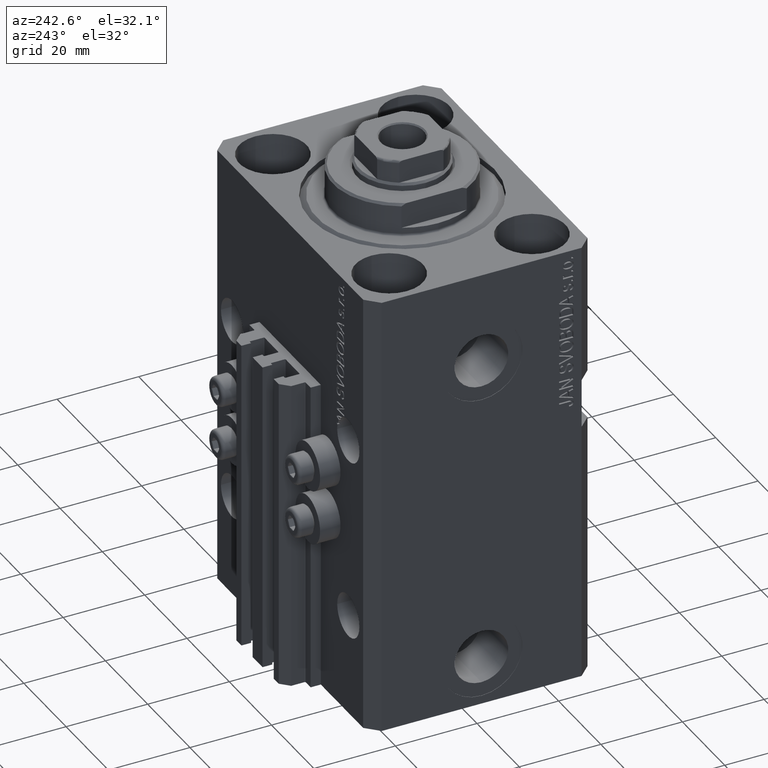
[diagram: clean part render]
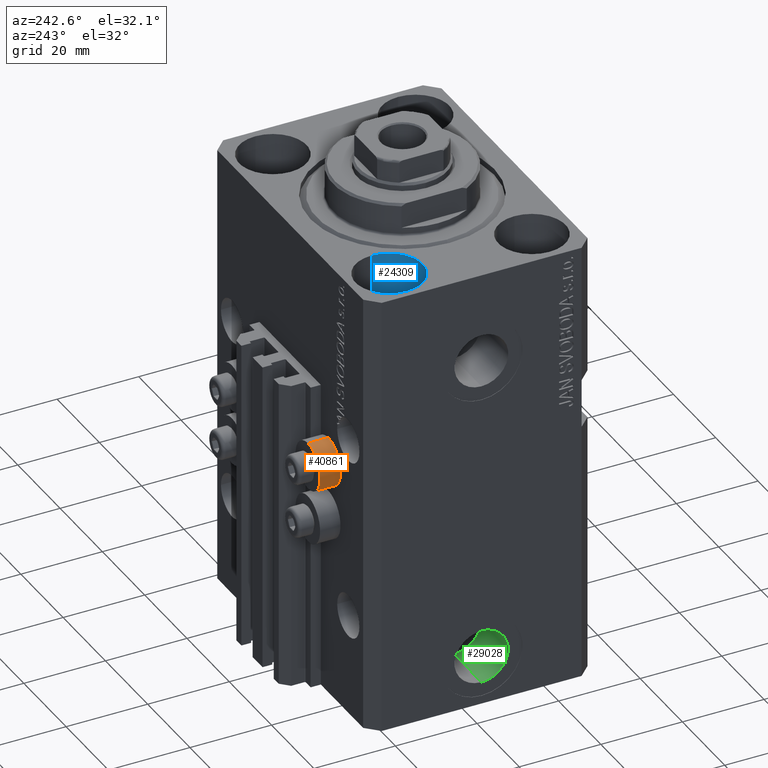
[diagram: same view with three faces highlighted in distinct colors, each labeled with its STEP entity id]
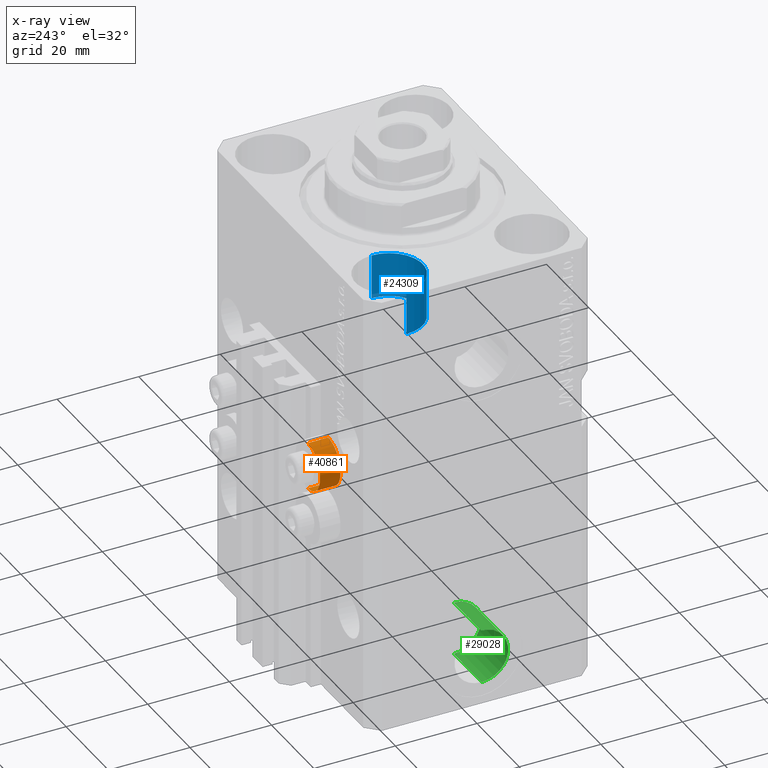
[diagram: x-ray of the same camera — body ghosted, the three highlighted faces saturated]
A machine part, auxiliary view with three faces highlighted in distinct colors.
The next image is the same camera in x-ray (body ghosted, the three faces saturated) — at least one of them is partly hidden behind the body in this view.
Their STEP definitions:

[orange] entity #40861 — the highlighted cylindrical surface (edge-blend (fillet) strip) has radius 5.8 mm, axis along (0, 1, 0).
#884 = CIRCLE ( 'NONE', #7029, 5.799999999999999822 ) ;
#1995 = DIRECTION ( 'NONE',  ( -0.000000000000000000, 1.000000000000000000, -0.000000000000000000 ) ) ;
#2016 = DIRECTION ( 'NONE',  ( 0.000000000000000000, 0.000000000000000000, 1.000000000000000000 ) ) ;
#2177 = VECTOR ( 'NONE', #40512, 1000.000000000000000 ) ;
#2582 = CARTESIAN_POINT ( 'NONE',  ( -18.00000000000000355, 32.49999999996100541, -44.60000000000000142 ) ) ;
#3168 = EDGE_LOOP ( 'NONE', ( #23769, #28924, #24273, #39586 ) ) ;
#5449 = EDGE_CURVE ( 'NONE', #33115, #8002, #46278, .T. ) ;
#7029 = AXIS2_PLACEMENT_3D ( 'NONE', #16367, #34528, #2016 ) ;
#8002 = VERTEX_POINT ( 'NONE', #2582 ) ;
#8936 = DIRECTION ( 'NONE',  ( 0.000000000000000000, 0.000000000000000000, 1.000000000000000000 ) ) ;
#11954 = EDGE_CURVE ( 'NONE', #38118, #27952, #15153, .T. ) ;
#13560 = CYLINDRICAL_SURFACE ( 'NONE', #29163, 5.799999999999999822 ) ;
#13714 = CARTESIAN_POINT ( 'NONE',  ( -18.00000000000000355, 32.49999999996100541, -44.60000000000000142 ) ) ;
#15153 = LINE ( 'NONE', #26605, #2177 ) ;
#15252 = CIRCLE ( 'NONE', #44276, 5.799999999999999822 ) ;
#16367 = CARTESIAN_POINT ( 'NONE',  ( -18.00000000000000355, 32.49999999996100541, -50.39999999999999858 ) ) ;
#18005 = VECTOR ( 'NONE', #32357, 1000.000000000000000 ) ;
#18150 = EDGE_CURVE ( 'NONE', #38118, #33115, #15252, .T. ) ;
#22915 = CARTESIAN_POINT ( 'NONE',  ( -18.00000000000000355, 27.50000000000000355, -56.20000000000000284 ) ) ;
#23035 = CARTESIAN_POINT ( 'NONE',  ( -18.00000000000000355, 27.50000000000000355, -50.39999999999999858 ) ) ;
#23769 = ORIENTED_EDGE ( 'NONE', *, *, #11954, .F. ) ;
#23839 = DIRECTION ( 'NONE',  ( 0.000000000000000000, 0.000000000000000000, 1.000000000000000000 ) ) ;
#23981 = EDGE_CURVE ( 'NONE', #27952, #8002, #884, .T. ) ;
#24273 = ORIENTED_EDGE ( 'NONE', *, *, #5449, .T. ) ;
#24784 = CARTESIAN_POINT ( 'NONE',  ( -18.00000000000000355, 32.49999999996100541, -50.39999999999999858 ) ) ;
#26605 = CARTESIAN_POINT ( 'NONE',  ( -18.00000000000000355, 32.49999999996100541, -56.20000000000000284 ) ) ;
#27952 = VERTEX_POINT ( 'NONE', #38541 ) ;
#28924 = ORIENTED_EDGE ( 'NONE', *, *, #18150, .T. ) ;
#29163 = AXIS2_PLACEMENT_3D ( 'NONE', #24784, #38922, #23839 ) ;
#32357 = DIRECTION ( 'NONE',  ( -0.000000000000000000, 1.000000000000000000, -0.000000000000000000 ) ) ;
#33115 = VERTEX_POINT ( 'NONE', #41682 ) ;
#34528 = DIRECTION ( 'NONE',  ( -0.000000000000000000, 1.000000000000000000, -0.000000000000000000 ) ) ;
#38118 = VERTEX_POINT ( 'NONE', #22915 ) ;
#38541 = CARTESIAN_POINT ( 'NONE',  ( -18.00000000000000355, 32.49999999996100541, -56.20000000000000284 ) ) ;
#38922 = DIRECTION ( 'NONE',  ( -0.000000000000000000, 1.000000000000000000, -0.000000000000000000 ) ) ;
#39153 = FACE_OUTER_BOUND ( 'NONE', #3168, .T. ) ;
#39586 = ORIENTED_EDGE ( 'NONE', *, *, #23981, .F. ) ;
#40512 = DIRECTION ( 'NONE',  ( -0.000000000000000000, 1.000000000000000000, -0.000000000000000000 ) ) ;
#40861 = ADVANCED_FACE ( 'NONE', ( #39153 ), #13560, .T. ) ;
#41682 = CARTESIAN_POINT ( 'NONE',  ( -18.00000000000000355, 27.50000000000000355, -44.60000000000000142 ) ) ;
#44276 = AXIS2_PLACEMENT_3D ( 'NONE', #23035, #1995, #8936 ) ;
#46278 = LINE ( 'NONE', #13714, #18005 ) ;

[blue] entity #24309 — the highlighted cylindrical surface (partial cylindrical patch) has radius 8.25 mm, axis along (0, 0, 1).
#470 = DIRECTION ( 'NONE',  ( -0.000000000000000000, -0.000000000000000000, 1.000000000000000000 ) ) ;
#1975 = VERTEX_POINT ( 'NONE', #20489 ) ;
#4605 = EDGE_CURVE ( 'NONE', #43257, #5982, #18666, .T. ) ;
#4793 = CARTESIAN_POINT ( 'NONE',  ( -35.75000000000000711, 17.50000000000000000, -11.00000000000000000 ) ) ;
#4826 = DIRECTION ( 'NONE',  ( 1.000000000000000000, 0.000000000000000000, 0.000000000000000000 ) ) ;
#5982 = VERTEX_POINT ( 'NONE', #37967 ) ;
#8181 = CYLINDRICAL_SURFACE ( 'NONE', #39134, 8.250000000000000000 ) ;
#8898 = DIRECTION ( 'NONE',  ( -0.000000000000000000, -0.000000000000000000, 1.000000000000000000 ) ) ;
#8939 = DIRECTION ( 'NONE',  ( 0.000000000000000000, 0.000000000000000000, 1.000000000000000000 ) ) ;
#10275 = EDGE_CURVE ( 'NONE', #37806, #43257, #32672, .T. ) ;
#10698 = ORIENTED_EDGE ( 'NONE', *, *, #4605, .F. ) ;
#11910 = LINE ( 'NONE', #37487, #33020 ) ;
#12938 = EDGE_CURVE ( 'NONE', #1975, #5982, #24361, .T. ) ;
#18666 = LINE ( 'NONE', #22240, #47022 ) ;
#18776 = ORIENTED_EDGE ( 'NONE', *, *, #12938, .T. ) ;
#20489 = CARTESIAN_POINT ( 'NONE',  ( -35.75000000000000711, 17.50000000000000000, 0.000000000000000000 ) ) ;
#22240 = CARTESIAN_POINT ( 'NONE',  ( -19.25000000000000355, 17.50000000000000000, -11.00000000000000000 ) ) ;
#23515 = DIRECTION ( 'NONE',  ( 1.000000000000000000, 0.000000000000000000, 0.000000000000000000 ) ) ;
#24225 = CARTESIAN_POINT ( 'NONE',  ( -27.50000000000000355, 17.50000000000000000, -11.00000000000000000 ) ) ;
#24309 = ADVANCED_FACE ( 'NONE', ( #30888 ), #8181, .F. ) ;
#24361 = CIRCLE ( 'NONE', #36598, 8.250000000000000000 ) ;
#24569 = EDGE_CURVE ( 'NONE', #37806, #1975, #11910, .T. ) ;
#26469 = DIRECTION ( 'NONE',  ( -0.000000000000000000, -0.000000000000000000, 1.000000000000000000 ) ) ;
#26579 = CARTESIAN_POINT ( 'NONE',  ( -27.50000000000000355, 17.50000000000000000, -11.00000000000000000 ) ) ;
#28171 = ORIENTED_EDGE ( 'NONE', *, *, #10275, .F. ) ;
#29559 = ORIENTED_EDGE ( 'NONE', *, *, #24569, .T. ) ;
#30888 = FACE_OUTER_BOUND ( 'NONE', #40325, .T. ) ;
#32672 = CIRCLE ( 'NONE', #43385, 8.250000000000000000 ) ;
#33020 = VECTOR ( 'NONE', #26469, 1000.000000000000000 ) ;
#36598 = AXIS2_PLACEMENT_3D ( 'NONE', #44596, #43902, #36927 ) ;
#36927 = DIRECTION ( 'NONE',  ( 1.000000000000000000, 0.000000000000000000, 0.000000000000000000 ) ) ;
#37487 = CARTESIAN_POINT ( 'NONE',  ( -35.75000000000000711, 17.50000000000000000, -11.00000000000000000 ) ) ;
#37806 = VERTEX_POINT ( 'NONE', #4793 ) ;
#37967 = CARTESIAN_POINT ( 'NONE',  ( -19.25000000000000355, 17.50000000000000000, 0.000000000000000000 ) ) ;
#39134 = AXIS2_PLACEMENT_3D ( 'NONE', #26579, #8898, #4826 ) ;
#40325 = EDGE_LOOP ( 'NONE', ( #28171, #29559, #18776, #10698 ) ) ;
#43257 = VERTEX_POINT ( 'NONE', #47055 ) ;
#43385 = AXIS2_PLACEMENT_3D ( 'NONE', #24225, #8939, #23515 ) ;
#43902 = DIRECTION ( 'NONE',  ( 0.000000000000000000, 0.000000000000000000, 1.000000000000000000 ) ) ;
#44596 = CARTESIAN_POINT ( 'NONE',  ( -27.50000000000000355, 17.50000000000000000, 0.000000000000000000 ) ) ;
#47022 = VECTOR ( 'NONE', #470, 1000.000000000000000 ) ;
#47055 = CARTESIAN_POINT ( 'NONE',  ( -19.25000000000000355, 17.50000000000000000, -11.00000000000000000 ) ) ;

[green] entity #29028 — the highlighted cylindrical surface (edge-blend (fillet) strip) has radius 6.58 mm, axis along (-1, -0, -0).
#98 = DIRECTION ( 'NONE',  ( -1.000000000000000000, -0.000000000000000000, -0.000000000000000000 ) ) ;
#514 = EDGE_CURVE ( 'NONE', #39154, #46313, #46877, .T. ) ;
#2315 = DIRECTION ( 'NONE',  ( -1.000000000000000000, 0.000000000000000000, 0.000000000000000000 ) ) ;
#2916 = LINE ( 'NONE', #13701, #14610 ) ;
#4566 = CYLINDRICAL_SURFACE ( 'NONE', #16233, 6.580000000000002736 ) ;
#6283 = CARTESIAN_POINT ( 'NONE',  ( -37.39999999999999147, -1.119572103780510441E-14, -104.5800000000000125 ) ) ;
#8756 = ORIENTED_EDGE ( 'NONE', *, *, #514, .F. ) ;
#13003 = CIRCLE ( 'NONE', #32061, 6.580000000000002736 ) ;
#13698 = EDGE_CURVE ( 'NONE', #39154, #46450, #46795, .T. ) ;
#13701 = CARTESIAN_POINT ( 'NONE',  ( -24.39999999999999147, -1.200153863164406187E-14, -91.42000000000000171 ) ) ;
#14610 = VECTOR ( 'NONE', #28505, 1000.000000000000000 ) ;
#15351 = ORIENTED_EDGE ( 'NONE', *, *, #13698, .T. ) ;
#15865 = CARTESIAN_POINT ( 'NONE',  ( -24.39999999999999147, -1.200153863164406187E-14, -98.00000000000000000 ) ) ;
#15963 = CARTESIAN_POINT ( 'NONE',  ( -37.39999999999999147, -1.200153863164406187E-14, -98.00000000000000000 ) ) ;
#16233 = AXIS2_PLACEMENT_3D ( 'NONE', #40950, #44298, #26088 ) ;
#17120 = CARTESIAN_POINT ( 'NONE',  ( -37.39999999999999147, -1.200153863164406187E-14, -91.42000000000000171 ) ) ;
#20917 = EDGE_LOOP ( 'NONE', ( #8756, #15351, #47041, #28757 ) ) ;
#22066 = EDGE_CURVE ( 'NONE', #46313, #30724, #2916, .T. ) ;
#26088 = DIRECTION ( 'NONE',  ( 0.000000000000000000, 0.000000000000000000, 1.000000000000000000 ) ) ;
#26137 = DIRECTION ( 'NONE',  ( 0.000000000000000000, 0.000000000000000000, 1.000000000000000000 ) ) ;
#26719 = DIRECTION ( 'NONE',  ( 0.000000000000000000, 0.000000000000000000, 1.000000000000000000 ) ) ;
#28505 = DIRECTION ( 'NONE',  ( -1.000000000000000000, -0.000000000000000000, -0.000000000000000000 ) ) ;
#28757 = ORIENTED_EDGE ( 'NONE', *, *, #22066, .F. ) ;
#29028 = ADVANCED_FACE ( 'NONE', ( #36867 ), #4566, .F. ) ;
#30724 = VERTEX_POINT ( 'NONE', #17120 ) ;
#31165 = CARTESIAN_POINT ( 'NONE',  ( -24.39999999999999147, -1.200153863164406187E-14, -91.42000000000000171 ) ) ;
#32061 = AXIS2_PLACEMENT_3D ( 'NONE', #15963, #2315, #26719 ) ;
#32881 = CARTESIAN_POINT ( 'NONE',  ( -24.39999999999999147, -1.119572103780510441E-14, -104.5800000000000125 ) ) ;
#33864 = AXIS2_PLACEMENT_3D ( 'NONE', #15865, #40520, #26137 ) ;
#36007 = EDGE_CURVE ( 'NONE', #46450, #30724, #13003, .T. ) ;
#36421 = CARTESIAN_POINT ( 'NONE',  ( -24.39999999999999147, -1.119572103780510441E-14, -104.5800000000000125 ) ) ;
#36867 = FACE_OUTER_BOUND ( 'NONE', #20917, .T. ) ;
#39154 = VERTEX_POINT ( 'NONE', #36421 ) ;
#40520 = DIRECTION ( 'NONE',  ( -1.000000000000000000, 0.000000000000000000, 0.000000000000000000 ) ) ;
#40950 = CARTESIAN_POINT ( 'NONE',  ( -24.39999999999999147, -1.200153863164406187E-14, -98.00000000000000000 ) ) ;
#41179 = VECTOR ( 'NONE', #98, 1000.000000000000000 ) ;
#44298 = DIRECTION ( 'NONE',  ( -1.000000000000000000, -0.000000000000000000, -0.000000000000000000 ) ) ;
#46313 = VERTEX_POINT ( 'NONE', #31165 ) ;
#46450 = VERTEX_POINT ( 'NONE', #6283 ) ;
#46795 = LINE ( 'NONE', #32881, #41179 ) ;
#46877 = CIRCLE ( 'NONE', #33864, 6.580000000000002736 ) ;
#47041 = ORIENTED_EDGE ( 'NONE', *, *, #36007, .T. ) ;